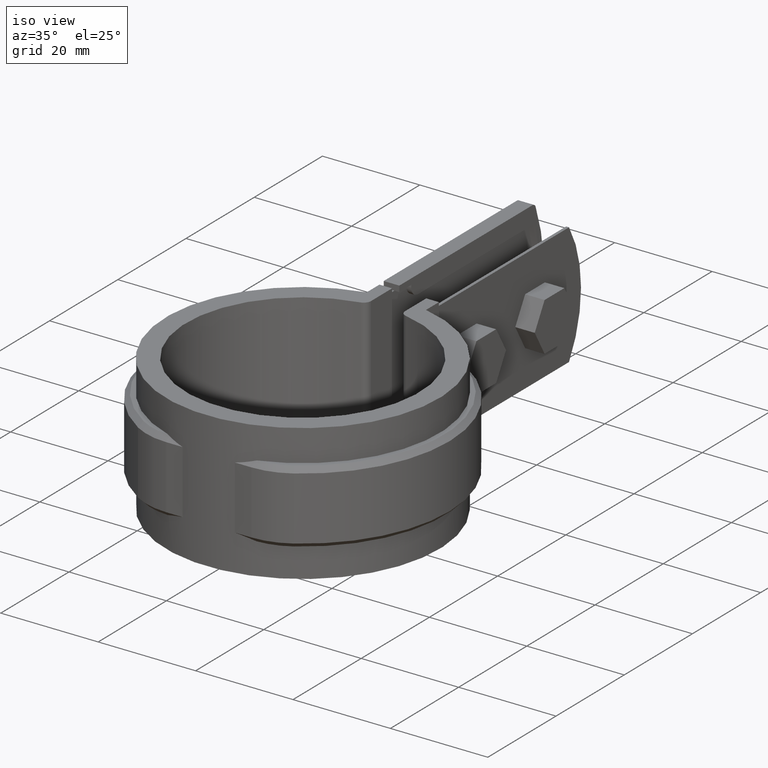
[diagram: clean part render]
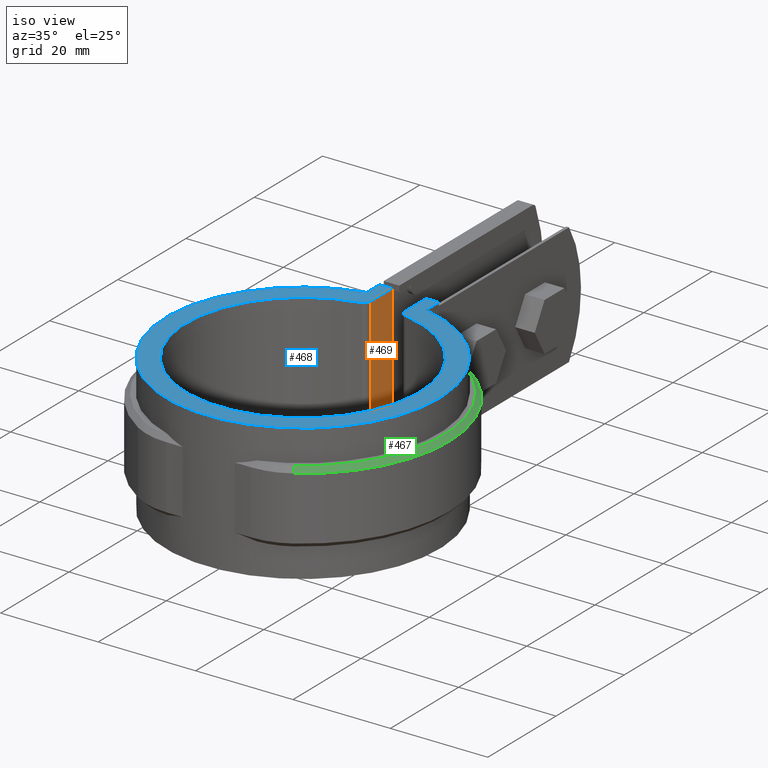
[diagram: same view with three faces highlighted in distinct colors, each labeled with its STEP entity id]
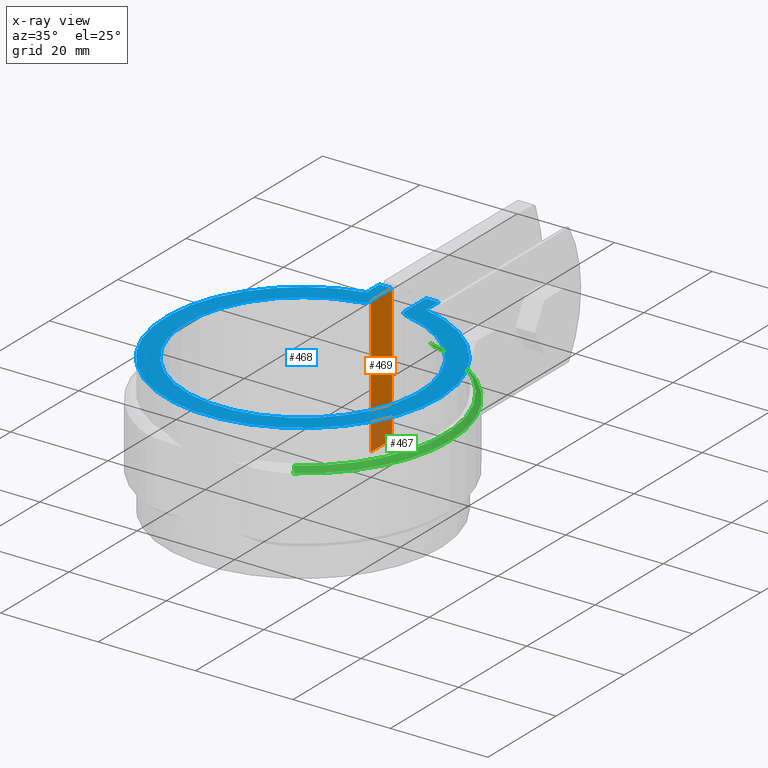
[diagram: x-ray of the same camera — body ghosted, the three highlighted faces saturated]
A machine part, iso view with three faces highlighted in distinct colors.
The next image is the same camera in x-ray (body ghosted, the three faces saturated) — at least one of them is partly hidden behind the body in this view.
Their STEP definitions:

[orange] entity #469 — the highlighted planar face has unit normal (1, -0, 0).
#469 = ADVANCED_FACE( '', ( #949 ), #950, .T. );
#949 = FACE_OUTER_BOUND( '', #2267, .T. );
#950 = PLANE( '', #2268 );
#2267 = EDGE_LOOP( '', ( #5267, #5268, #5269, #5270 ) );
#2268 = AXIS2_PLACEMENT_3D( '', #5271, #5272, #5273 );
#5267 = ORIENTED_EDGE( '', *, *, #7744, .F. );
#5268 = ORIENTED_EDGE( '', *, *, #7749, .T. );
#5269 = ORIENTED_EDGE( '', *, *, #7750, .T. );
#5270 = ORIENTED_EDGE( '', *, *, #7537, .T. );
#5271 = CARTESIAN_POINT( '', ( -3.49999999999999, 23.7383660979436, -26.5000000000000 ) );
#5272 = DIRECTION( '', ( 1.00000000000000, -6.07153216591882E-017, 0.000000000000000 ) );
#5273 = DIRECTION( '', ( 0.000000000000000, 0.000000000000000, 1.00000000000000 ) );
#7537 = EDGE_CURVE( '', #8623, #8620, #8624, .T. );
#7744 = EDGE_CURVE( '', #8975, #8620, #8977, .F. );
#7749 = EDGE_CURVE( '', #8975, #8983, #8984, .T. );
#7750 = EDGE_CURVE( '', #8983, #8623, #8985, .T. );
#8620 = VERTEX_POINT( '', #11098 );
#8623 = VERTEX_POINT( '', #11102 );
#8624 = LINE( '', #11103, #11104 );
#8975 = VERTEX_POINT( '', #12367 );
#8977 = LINE( '', #12369, #12370 );
#8983 = VERTEX_POINT( '', #12379 );
#8984 = LINE( '', #12380, #12381 );
#8985 = LINE( '', #12382, #12383 );
#11098 = CARTESIAN_POINT( '', ( -3.49999999999999, 31.1900000000000, 1.50000000000000 ) );
#11102 = CARTESIAN_POINT( '', ( -3.49999999999999, 31.1900000000000, -26.5000000000000 ) );
#11103 = CARTESIAN_POINT( '', ( -3.49999999999999, 31.1900000000000, -26.5000000000000 ) );
#11104 = VECTOR( '', #14021, 1000.00000000000 );
#12367 = CARTESIAN_POINT( '', ( -3.49999999999999, 25.0049995001000, 1.50000000000000 ) );
#12369 = CARTESIAN_POINT( '', ( -3.49999999999999, 26.7207784317748, 1.50000000000000 ) );
#12370 = VECTOR( '', #14242, 1000.00000000000 );
#12379 = CARTESIAN_POINT( '', ( -3.49999999999999, 25.0049995001000, -26.5000000000000 ) );
#12380 = CARTESIAN_POINT( '', ( -3.49999999999999, 25.0049995001000, -26.5000000000000 ) );
#12381 = VECTOR( '', #14249, 1000.00000000000 );
#12382 = CARTESIAN_POINT( '', ( -3.49999999999999, 23.7383660979436, -26.5000000000000 ) );
#12383 = VECTOR( '', #14250, 1000.00000000000 );
#14021 = DIRECTION( '', ( 0.000000000000000, 0.000000000000000, 1.00000000000000 ) );
#14242 = DIRECTION( '', ( -6.07153216591882E-017, -1.00000000000000, 0.000000000000000 ) );
#14249 = DIRECTION( '', ( 0.000000000000000, 0.000000000000000, -1.00000000000000 ) );
#14250 = DIRECTION( '', ( 6.07153216591882E-017, 1.00000000000000, 0.000000000000000 ) );

[blue] entity #468 — the highlighted planar face has unit normal (0, 0, -1).
#468 = ADVANCED_FACE( '', ( #947 ), #948, .F. );
#947 = FACE_OUTER_BOUND( '', #2265, .T. );
#948 = PLANE( '', #2266 );
#2265 = EDGE_LOOP( '', ( #5254, #5255, #5256, #5257, #5258, #5259, #5260, #5261, #5262, #5263 ) );
#2266 = AXIS2_PLACEMENT_3D( '', #5264, #5265, #5266 );
#5254 = ORIENTED_EDGE( '', *, *, #7742, .F. );
#5255 = ORIENTED_EDGE( '', *, *, #7743, .T. );
#5256 = ORIENTED_EDGE( '', *, *, #7744, .T. );
#5257 = ORIENTED_EDGE( '', *, *, #7536, .T. );
#5258 = ORIENTED_EDGE( '', *, *, #7745, .T. );
#5259 = ORIENTED_EDGE( '', *, *, #7705, .T. );
#5260 = ORIENTED_EDGE( '', *, *, #7746, .T. );
#5261 = ORIENTED_EDGE( '', *, *, #7747, .T. );
#5262 = ORIENTED_EDGE( '', *, *, #7658, .T. );
#5263 = ORIENTED_EDGE( '', *, *, #7748, .T. );
#5264 = CARTESIAN_POINT( '', ( -6.50000000000000, 26.7207784317748, 1.50000000000000 ) );
#5265 = DIRECTION( '', ( 0.000000000000000, 0.000000000000000, -1.00000000000000 ) );
#5266 = DIRECTION( '', ( 0.000000000000000, -1.00000000000000, 0.000000000000000 ) );
#7536 = EDGE_CURVE( '', #8620, #8621, #8622, .F. );
#7658 = EDGE_CURVE( '', #8846, #8844, #8847, .F. );
#7705 = EDGE_CURVE( '', #8921, #8919, #8922, .F. );
#7742 = EDGE_CURVE( '', #8972, #8973, #8974, .F. );
#7743 = EDGE_CURVE( '', #8972, #8975, #8976, .F. );
#7744 = EDGE_CURVE( '', #8975, #8620, #8977, .F. );
#7745 = EDGE_CURVE( '', #8621, #8921, #8978, .F. );
#7746 = EDGE_CURVE( '', #8919, #8979, #8980, .F. );
#7747 = EDGE_CURVE( '', #8979, #8846, #8981, .F. );
#7748 = EDGE_CURVE( '', #8844, #8973, #8982, .F. );
#8620 = VERTEX_POINT( '', #11098 );
#8621 = VERTEX_POINT( '', #11099 );
#8622 = LINE( '', #11100, #11101 );
#8844 = VERTEX_POINT( '', #11971 );
#8846 = VERTEX_POINT( '', #11974 );
#8847 = LINE( '', #11975, #11976 );
#8919 = VERTEX_POINT( '', #12173 );
#8921 = VERTEX_POINT( '', #12176 );
#8922 = CIRCLE( '', #12177, 28.0950000000000 );
#8972 = VERTEX_POINT( '', #12364 );
#8973 = VERTEX_POINT( '', #12365 );
#8974 = CIRCLE( '', #12366, 24.0000000000000 );
#8975 = VERTEX_POINT( '', #12367 );
#8976 = CIRCLE( '', #12368, 1.50000000000000 );
#8977 = LINE( '', #12369, #12370 );
#8978 = LINE( '', #12371, #12372 );
#8979 = VERTEX_POINT( '', #12373 );
#8980 = LINE( '', #12374, #12375 );
#8981 = LINE( '', #12376, #12377 );
#8982 = CIRCLE( '', #12378, 1.50000000000000 );
#11098 = CARTESIAN_POINT( '', ( -3.49999999999999, 31.1900000000000, 1.50000000000000 ) );
#11099 = CARTESIAN_POINT( '', ( -6.10000000000000, 31.1900000000000, 1.50000000000000 ) );
#11100 = CARTESIAN_POINT( '', ( -6.50000000000000, 31.1900000000000, 1.50000000000000 ) );
#11101 = VECTOR( '', #14020, 1000.00000000000 );
#11971 = CARTESIAN_POINT( '', ( 3.50000000000000, 25.0049995001000, 1.50000000000000 ) );
#11974 = CARTESIAN_POINT( '', ( 3.50000000000000, 31.1900000000000, 1.50000000000000 ) );
#11975 = CARTESIAN_POINT( '', ( 3.50000000000000, 26.7207784317748, 1.50000000000000 ) );
#11976 = VECTOR( '', #14143, 1000.00000000000 );
#12173 = CARTESIAN_POINT( '', ( 6.10000000000001, 27.4247885133140, 1.50000000000000 ) );
#12176 = CARTESIAN_POINT( '', ( -6.10000000000000, 27.4247885133140, 1.50000000000000 ) );
#12177 = AXIS2_PLACEMENT_3D( '', #14194, #14195, #14196 );
#12364 = CARTESIAN_POINT( '', ( -4.70588235294117, 23.5341171765647, 1.50000000000000 ) );
#12365 = CARTESIAN_POINT( '', ( 4.70588235294118, 23.5341171765647, 1.50000000000000 ) );
#12366 = AXIS2_PLACEMENT_3D( '', #14236, #14237, #14238 );
#12367 = CARTESIAN_POINT( '', ( -3.49999999999999, 25.0049995001000, 1.50000000000000 ) );
#12368 = AXIS2_PLACEMENT_3D( '', #14239, #14240, #14241 );
#12369 = CARTESIAN_POINT( '', ( -3.49999999999999, 26.7207784317748, 1.50000000000000 ) );
#12370 = VECTOR( '', #14242, 1000.00000000000 );
#12371 = CARTESIAN_POINT( '', ( -6.10000000000000, 26.7207784317748, 1.50000000000000 ) );
#12372 = VECTOR( '', #14243, 1000.00000000000 );
#12373 = CARTESIAN_POINT( '', ( 6.10000000000001, 31.1900000000000, 1.50000000000000 ) );
#12374 = CARTESIAN_POINT( '', ( 6.10000000000001, 26.7207784317748, 1.50000000000000 ) );
#12375 = VECTOR( '', #14244, 1000.00000000000 );
#12376 = CARTESIAN_POINT( '', ( -6.50000000000000, 31.1900000000000, 1.50000000000000 ) );
#12377 = VECTOR( '', #14245, 1000.00000000000 );
#12378 = AXIS2_PLACEMENT_3D( '', #14246, #14247, #14248 );
#14020 = DIRECTION( '', ( 1.00000000000000, 0.000000000000000, 0.000000000000000 ) );
#14143 = DIRECTION( '', ( 6.07153216591882E-017, 1.00000000000000, 0.000000000000000 ) );
#14194 = CARTESIAN_POINT( '', ( 0.000000000000000, 0.000000000000000, 1.50000000000000 ) );
#14195 = DIRECTION( '', ( 0.000000000000000, 0.000000000000000, -1.00000000000000 ) );
#14196 = DIRECTION( '', ( -1.00000000000000, 0.000000000000000, 0.000000000000000 ) );
#14236 = CARTESIAN_POINT( '', ( 6.93889390390723E-015, 0.000000000000000, 1.50000000000000 ) );
#14237 = DIRECTION( '', ( 0.000000000000000, 0.000000000000000, -1.00000000000000 ) );
#14238 = DIRECTION( '', ( -1.00000000000000, 0.000000000000000, 0.000000000000000 ) );
#14239 = CARTESIAN_POINT( '', ( -4.99999999999999, 25.0049995001000, 1.50000000000000 ) );
#14240 = DIRECTION( '', ( 0.000000000000000, 0.000000000000000, -1.00000000000000 ) );
#14241 = DIRECTION( '', ( -1.00000000000000, 0.000000000000000, 0.000000000000000 ) );
#14242 = DIRECTION( '', ( -6.07153216591882E-017, -1.00000000000000, 0.000000000000000 ) );
#14243 = DIRECTION( '', ( 6.07153216591882E-017, 1.00000000000000, 0.000000000000000 ) );
#14244 = DIRECTION( '', ( -6.07153216591882E-017, -1.00000000000000, 0.000000000000000 ) );
#14245 = DIRECTION( '', ( 1.00000000000000, 0.000000000000000, 0.000000000000000 ) );
#14246 = CARTESIAN_POINT( '', ( 5.00000000000000, 25.0049995001000, 1.50000000000000 ) );
#14247 = DIRECTION( '', ( 0.000000000000000, 0.000000000000000, -1.00000000000000 ) );
#14248 = DIRECTION( '', ( -1.00000000000000, 0.000000000000000, 0.000000000000000 ) );

[green] entity #467 — the highlighted conical surface has half-angle 45 deg.
#467 = ADVANCED_FACE( '', ( #945 ), #946, .T. );
#945 = FACE_OUTER_BOUND( '', #2263, .T. );
#946 = CONICAL_SURFACE( '', #2264, 30.0950000000000, 0.785398163397449 );
#2263 = EDGE_LOOP( '', ( #5247, #5248, #5249, #5250 ) );
#2264 = AXIS2_PLACEMENT_3D( '', #5251, #5252, #5253 );
#5247 = ORIENTED_EDGE( '', *, *, #7740, .F. );
#5248 = ORIENTED_EDGE( '', *, *, #7667, .F. );
#5249 = ORIENTED_EDGE( '', *, *, #7571, .F. );
#5250 = ORIENTED_EDGE( '', *, *, #7741, .F. );
#5251 = CARTESIAN_POINT( '', ( 8.67361737988404E-016, 0.000000000000000, -6.00000000000000 ) );
#5252 = DIRECTION( '', ( 0.000000000000000, 0.000000000000000, -1.00000000000000 ) );
#5253 = DIRECTION( '', ( -1.00000000000000, 0.000000000000000, 0.000000000000000 ) );
#7571 = EDGE_CURVE( '', #8686, #8688, #8689, .T. );
#7667 = EDGE_CURVE( '', #8688, #8860, #8861, .T. );
#7740 = EDGE_CURVE( '', #8860, #8969, #8970, .F. );
#7741 = EDGE_CURVE( '', #8969, #8686, #8971, .T. );
#8686 = VERTEX_POINT( '', #11359 );
#8688 = VERTEX_POINT( '', #11361 );
#8689 = LINE( '', #11362, #11363 );
#8860 = VERTEX_POINT( '', #12041 );
#8861 = CIRCLE( '', #12042, 29.0950000000000 );
#8969 = VERTEX_POINT( '', #12358 );
#8970 = B_SPLINE_CURVE_WITH_KNOTS( '', 3, ( #12359, #12360, #12361, #12362 ), .UNSPECIFIED., .F., .F., ( 4, 4 ), ( 707.064662971533, 707.066092797481 ), .UNSPECIFIED. );
#8971 = CIRCLE( '', #12363, 30.0950000000000 );
#11359 = CARTESIAN_POINT( '', ( 15.9728671526465, -25.5064019399818, -6.00000000000000 ) );
#11361 = CARTESIAN_POINT( '', ( 15.4421189501993, -24.6588723855714, -5.00000000000000 ) );
#11362 = CARTESIAN_POINT( '', ( 15.9728671526464, -25.5064019399818, -6.00000000000000 ) );
#11363 = VECTOR( '', #14055, 1000.00000000000 );
#12041 = CARTESIAN_POINT( '', ( 6.10000000000001, 28.4483571581911, -5.00000000000000 ) );
#12042 = AXIS2_PLACEMENT_3D( '', #14148, #14149, #14150 );
#12358 = CARTESIAN_POINT( '', ( 6.10000000000001, 29.4703075145136, -5.99999999999999 ) );
#12359 = CARTESIAN_POINT( '', ( 6.10000000000001, 29.4703075145244, -6.00000000001056 ) );
#12360 = CARTESIAN_POINT( '', ( 6.10000000000001, 29.1297801164765, -5.66654104876981 ) );
#12361 = CARTESIAN_POINT( '', ( 6.10000000000001, 28.7891343087319, -5.33320330262716 ) );
#12362 = CARTESIAN_POINT( '', ( 6.10000000000001, 28.4483571581937, -5.00000000000259 ) );
#12363 = AXIS2_PLACEMENT_3D( '', #14233, #14234, #14235 );
#14055 = DIRECTION( '', ( -0.375295653052935, 0.599293895179627, 0.707106781186549 ) );
#14148 = CARTESIAN_POINT( '', ( 8.67361737988404E-016, 0.000000000000000, -5.00000000000000 ) );
#14149 = DIRECTION( '', ( 0.000000000000000, 0.000000000000000, 1.00000000000000 ) );
#14150 = DIRECTION( '', ( 1.00000000000000, 0.000000000000000, 0.000000000000000 ) );
#14233 = CARTESIAN_POINT( '', ( 8.67361737988404E-016, 0.000000000000000, -6.00000000000000 ) );
#14234 = DIRECTION( '', ( 0.000000000000000, 0.000000000000000, -1.00000000000000 ) );
#14235 = DIRECTION( '', ( -1.00000000000000, 0.000000000000000, 0.000000000000000 ) );